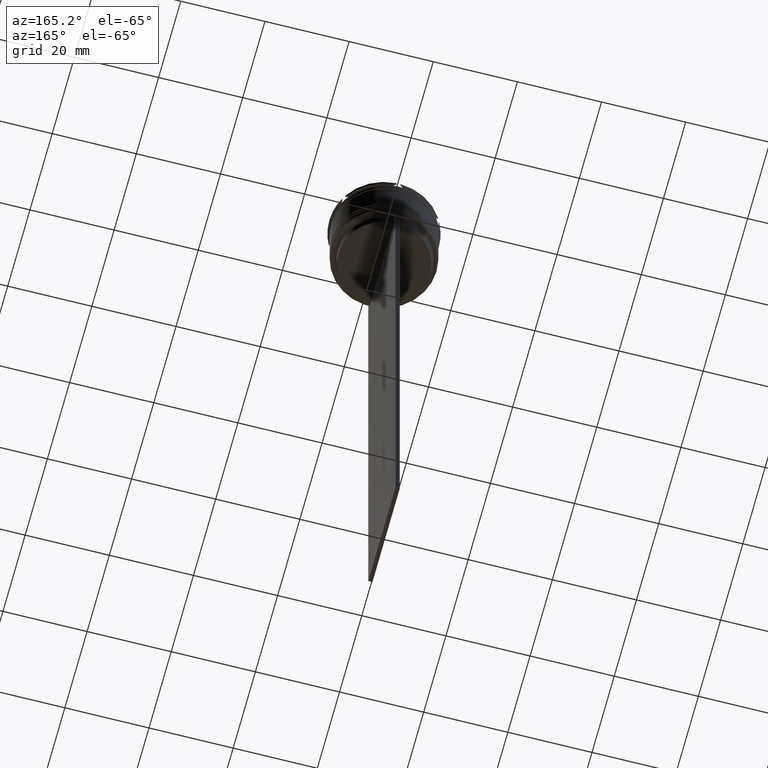
[diagram: clean part render]
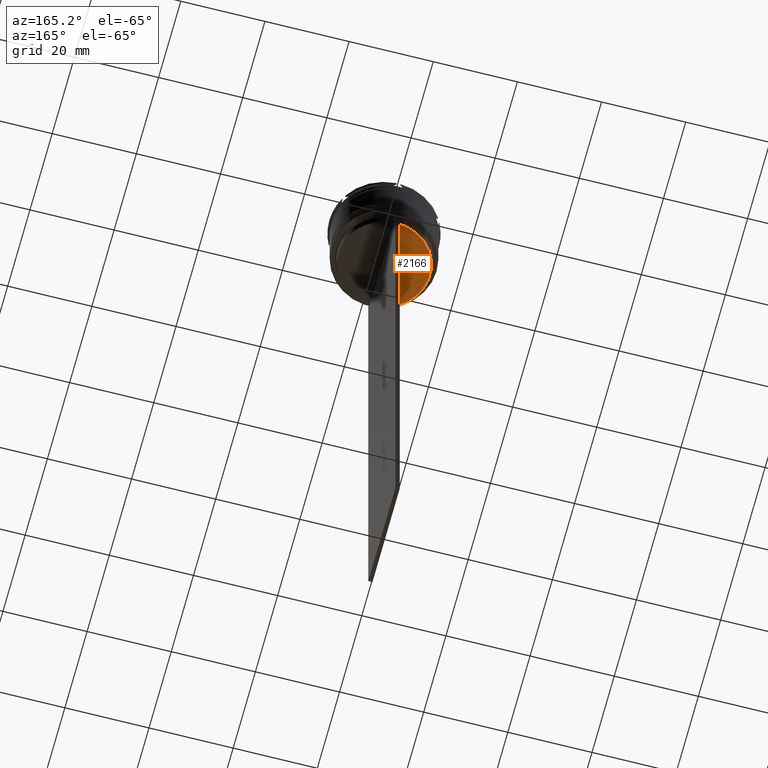
[diagram: same view with one face highlighted and labeled with its STEP entity id]
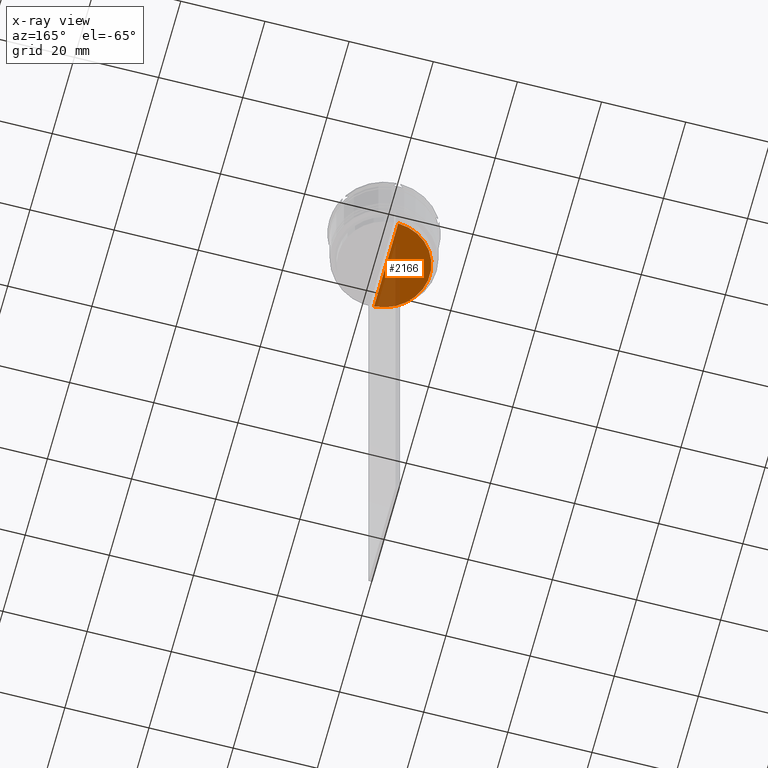
[diagram: x-ray of the same camera — body ghosted, the highlighted face saturated]
A machine part, auxiliary view. The second image highlights one B-rep face of the part: STEP entity #2166.
The next image is the same camera in x-ray: the body ghosted, the highlighted face saturated — about 29% of this face is hidden behind the body in this view.
In plain terms, the highlighted planar face has unit normal (0, -0, 1).
Its self-contained STEP definition (entity closure, byte-faithful):
#66 = DIRECTION ( 'NONE',  ( 0.000000000000000000, -0.000000000000000000, 1.000000000000000000 ) ) ;
#265 = PLANE ( 'NONE',  #320 ) ;
#320 = AXIS2_PLACEMENT_3D ( 'NONE', #1111, #66, #1752 ) ;
#616 = CARTESIAN_POINT ( 'NONE',  ( 0.000000000000000000, 0.000000000000000000, -17.00000000000000000 ) ) ;
#620 = ORIENTED_EDGE ( 'NONE', *, *, #1493, .T. ) ;
#672 = AXIS2_PLACEMENT_3D ( 'NONE', #616, #1472, #2342 ) ;
#1023 = LINE ( 'NONE', #1871, #1610 ) ;
#1111 = CARTESIAN_POINT ( 'NONE',  ( 0.000000000000000000, 10.90000000000000213, -17.00000000000000000 ) ) ;
#1321 = VERTEX_POINT ( 'NONE', #2456 ) ;
#1472 = DIRECTION ( 'NONE',  ( -0.000000000000000000, -0.000000000000000000, 1.000000000000000000 ) ) ;
#1493 = EDGE_CURVE ( 'NONE', #1321, #1612, #1023, .T. ) ;
#1610 = VECTOR ( 'NONE', #1619, 1000.000000000000000 ) ;
#1612 = VERTEX_POINT ( 'NONE', #2545 ) ;
#1619 = DIRECTION ( 'NONE',  ( 0.000000000000000000, -1.000000000000000000, 0.000000000000000000 ) ) ;
#1752 = DIRECTION ( 'NONE',  ( 1.000000000000000000, 0.000000000000000000, 0.000000000000000000 ) ) ;
#1845 = CIRCLE ( 'NONE', #672, 10.90000000000000213 ) ;
#1871 = CARTESIAN_POINT ( 'NONE',  ( -0.4999999999999997780, 10.90000000000000213, -17.00000000000000000 ) ) ;
#2091 = EDGE_CURVE ( 'NONE', #1321, #1612, #1845, .T. ) ;
#2166 = ADVANCED_FACE ( 'NONE', ( #2449 ), #265, .F. ) ;
#2342 = DIRECTION ( 'NONE',  ( 1.000000000000000000, 0.000000000000000000, 0.000000000000000000 ) ) ;
#2449 = FACE_OUTER_BOUND ( 'NONE', #2483, .T. ) ;
#2456 = CARTESIAN_POINT ( 'NONE',  ( -0.4999999999999997780, 10.88852607105296144, -17.00000000000000000 ) ) ;
#2483 = EDGE_LOOP ( 'NONE', ( #2599, #620 ) ) ;
#2545 = CARTESIAN_POINT ( 'NONE',  ( -0.4999999999999997780, -10.88852607105296144, -17.00000000000000000 ) ) ;
#2599 = ORIENTED_EDGE ( 'NONE', *, *, #2091, .F. ) ;